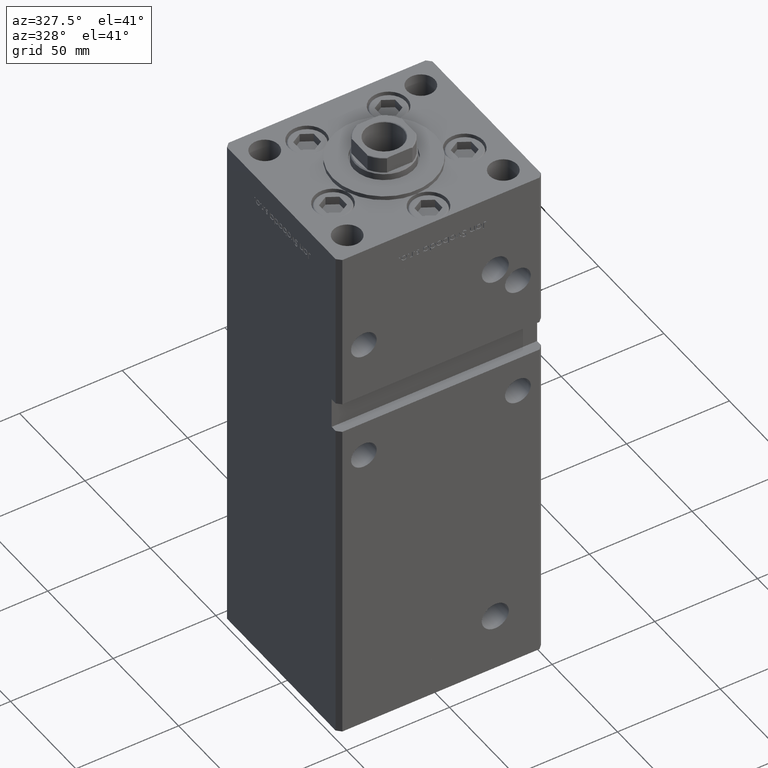
[diagram: clean part render]
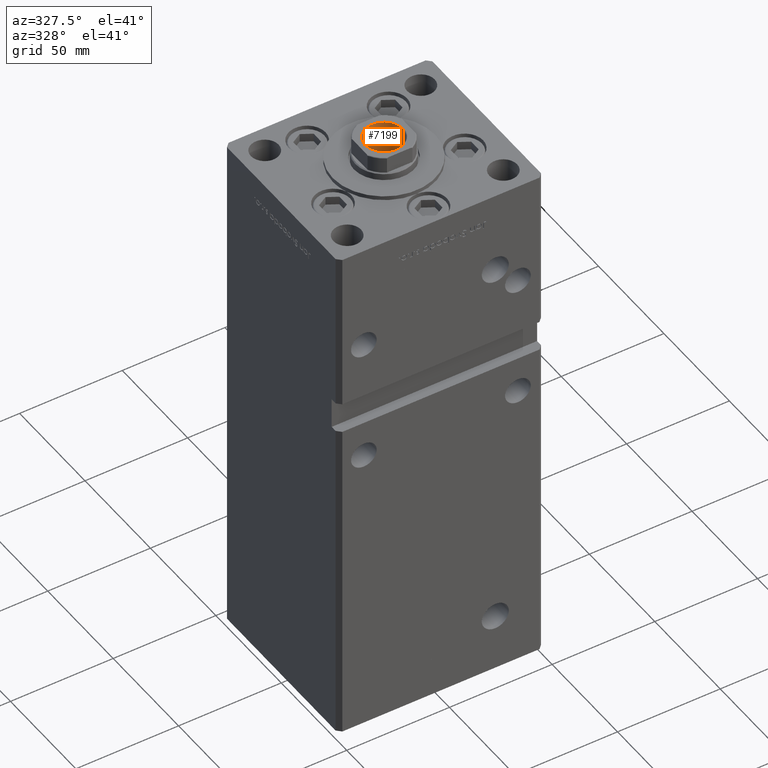
[diagram: same view with one face highlighted and labeled with its STEP entity id]
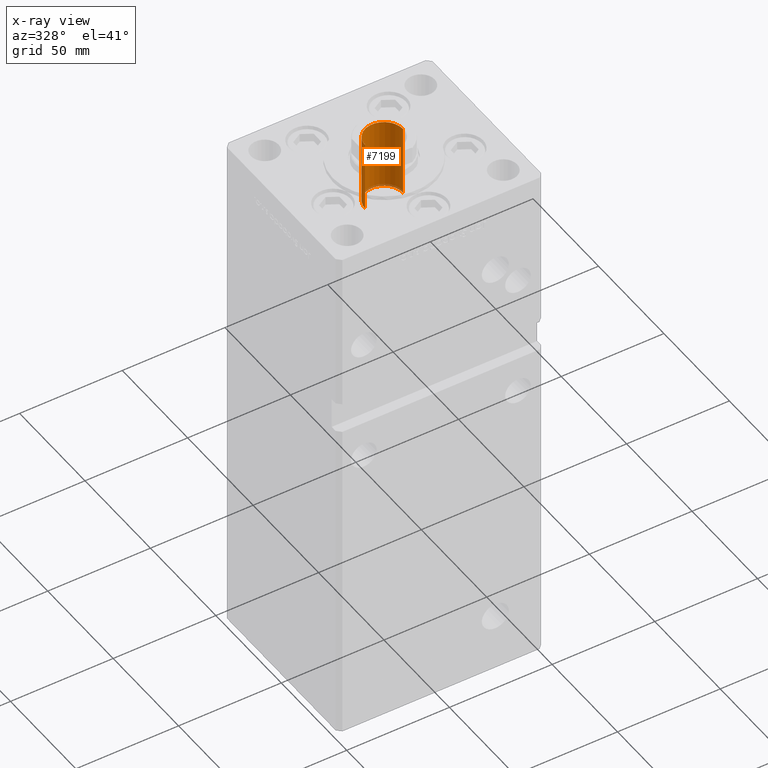
[diagram: x-ray of the same camera — body ghosted, the highlighted face saturated]
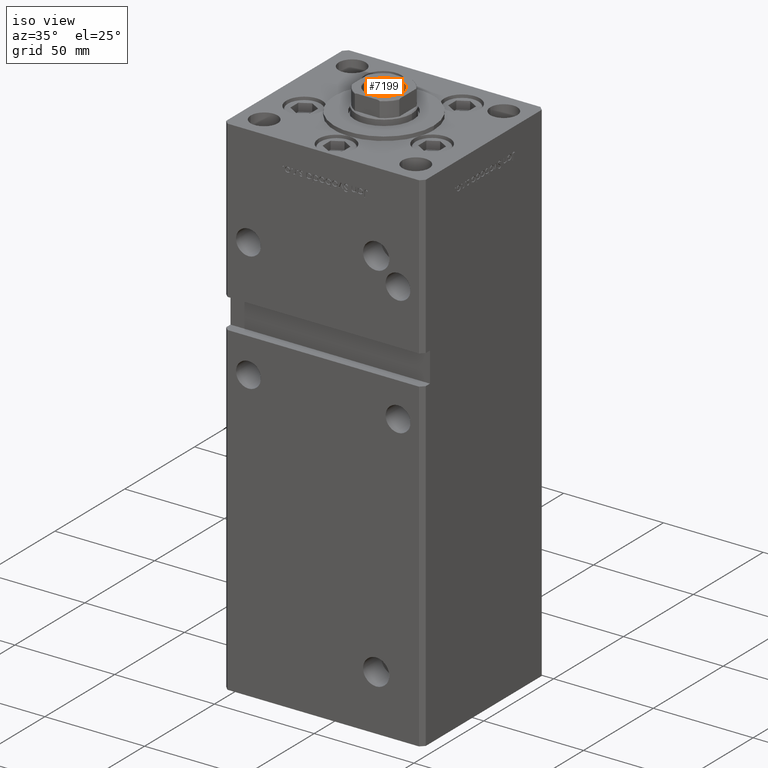
[diagram: same view with one face highlighted and labeled with its STEP entity id]
A machine part, auxiliary view. The second image highlights one B-rep face of the part: STEP entity #7199.
The next image is the same camera in x-ray: the body ghosted, the highlighted face saturated — about 3% of this face is hidden behind the body in this view.
A second angle (iso view) of the same face is appended — the face is thin or edge-on in the first view.
In plain terms, the highlighted cylindrical surface (edge-blend (fillet) strip) has radius 9.25 mm, axis along (0, 0, 1).
Its self-contained STEP definition (entity closure, byte-faithful):
#3879 = ORIENTED_EDGE ( 'NONE', *, *, #26307, .F. ) ;
#4971 = ORIENTED_EDGE ( 'NONE', *, *, #17860, .F. ) ;
#5611 = LINE ( 'NONE', #49430, #36606 ) ;
#6102 = LINE ( 'NONE', #14424, #51973 ) ;
#6899 = DIRECTION ( 'NONE',  ( 1.000000000000000000, 0.000000000000000000, 0.000000000000000000 ) ) ;
#7199 = ADVANCED_FACE ( 'NONE', ( #46981 ), #14729, .F. ) ;
#8861 = EDGE_CURVE ( 'NONE', #35155, #35417, #5611, .T. ) ;
#10251 = CARTESIAN_POINT ( 'NONE',  ( 9.249999999999994671, 0.000000000000000000, 200.2500000000000000 ) ) ;
#14424 = CARTESIAN_POINT ( 'NONE',  ( -9.249999999999996447, 1.132798289211301304E-15, 235.2500000000000284 ) ) ;
#14462 = DIRECTION ( 'NONE',  ( -0.000000000000000000, -0.000000000000000000, 1.000000000000000000 ) ) ;
#14729 = CYLINDRICAL_SURFACE ( 'NONE', #50332, 9.249999999999996447 ) ;
#17860 = EDGE_CURVE ( 'NONE', #35155, #17903, #45480, .T. ) ;
#17903 = VERTEX_POINT ( 'NONE', #39933 ) ;
#20124 = VERTEX_POINT ( 'NONE', #31975 ) ;
#20333 = DIRECTION ( 'NONE',  ( -0.000000000000000000, -0.000000000000000000, 1.000000000000000000 ) ) ;
#21167 = DIRECTION ( 'NONE',  ( 0.000000000000000000, 0.000000000000000000, 1.000000000000000000 ) ) ;
#22511 = DIRECTION ( 'NONE',  ( -0.000000000000000000, -0.000000000000000000, 1.000000000000000000 ) ) ;
#23093 = CIRCLE ( 'NONE', #53139, 9.249999999999996447 ) ;
#23827 = CARTESIAN_POINT ( 'NONE',  ( 0.000000000000000000, 0.000000000000000000, 200.2500000000000000 ) ) ;
#24507 = EDGE_LOOP ( 'NONE', ( #3879, #4971, #38128, #30281 ) ) ;
#26307 = EDGE_CURVE ( 'NONE', #17903, #20124, #6102, .T. ) ;
#30281 = ORIENTED_EDGE ( 'NONE', *, *, #36453, .T. ) ;
#31110 = DIRECTION ( 'NONE',  ( 1.000000000000000000, 0.000000000000000000, 0.000000000000000000 ) ) ;
#31975 = CARTESIAN_POINT ( 'NONE',  ( -9.249999999999996447, 1.132798289211301304E-15, 234.9499999999999886 ) ) ;
#35155 = VERTEX_POINT ( 'NONE', #10251 ) ;
#35417 = VERTEX_POINT ( 'NONE', #39931 ) ;
#36453 = EDGE_CURVE ( 'NONE', #35417, #20124, #23093, .T. ) ;
#36606 = VECTOR ( 'NONE', #38119, 1000.000000000000000 ) ;
#37808 = DIRECTION ( 'NONE',  ( 1.000000000000000000, 0.000000000000000000, 0.000000000000000000 ) ) ;
#38070 = CARTESIAN_POINT ( 'NONE',  ( 0.000000000000000000, 0.000000000000000000, 234.9499999999999886 ) ) ;
#38119 = DIRECTION ( 'NONE',  ( -0.000000000000000000, -0.000000000000000000, 1.000000000000000000 ) ) ;
#38128 = ORIENTED_EDGE ( 'NONE', *, *, #8861, .T. ) ;
#39931 = CARTESIAN_POINT ( 'NONE',  ( 9.249999999999996447, 0.000000000000000000, 234.9499999999999886 ) ) ;
#39933 = CARTESIAN_POINT ( 'NONE',  ( -9.249999999999994671, 1.132798289211300909E-15, 200.2500000000000000 ) ) ;
#45480 = CIRCLE ( 'NONE', #48055, 9.249999999999994671 ) ;
#46463 = CARTESIAN_POINT ( 'NONE',  ( 0.000000000000000000, 0.000000000000000000, 235.2500000000000284 ) ) ;
#46981 = FACE_OUTER_BOUND ( 'NONE', #24507, .T. ) ;
#48055 = AXIS2_PLACEMENT_3D ( 'NONE', #23827, #20333, #6899 ) ;
#49430 = CARTESIAN_POINT ( 'NONE',  ( 9.249999999999996447, 0.000000000000000000, 235.2500000000000284 ) ) ;
#50332 = AXIS2_PLACEMENT_3D ( 'NONE', #46463, #14462, #31110 ) ;
#51973 = VECTOR ( 'NONE', #22511, 1000.000000000000000 ) ;
#53139 = AXIS2_PLACEMENT_3D ( 'NONE', #38070, #21167, #37808 ) ;